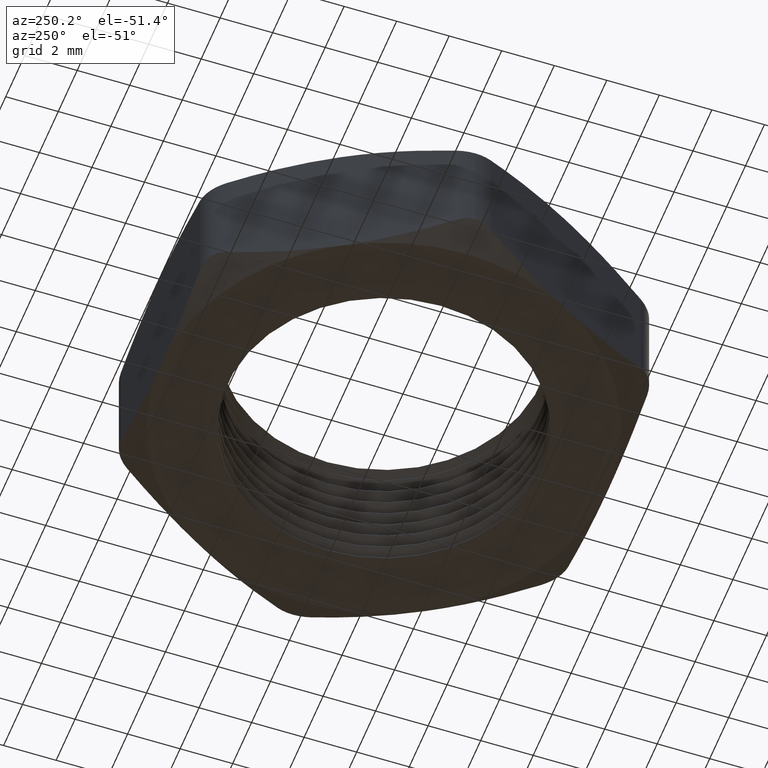
[diagram: clean part render]
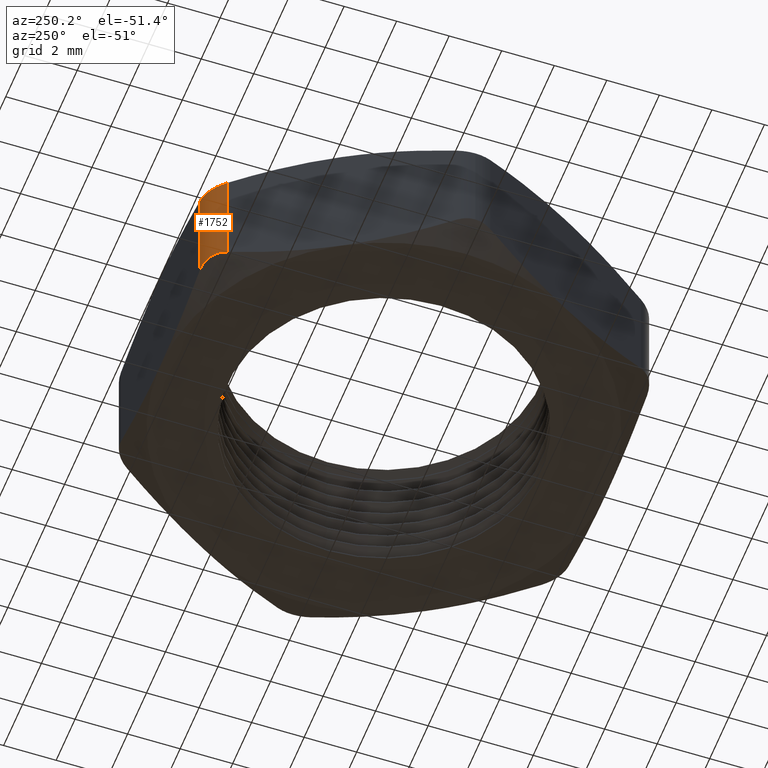
[diagram: same view with one face highlighted and labeled with its STEP entity id]
A machine part, auxiliary view. The second image highlights one B-rep face of the part: STEP entity #1752.
In plain terms, the highlighted cylindrical surface (edge-blend (fillet) strip) has radius 1.27 mm, axis along (0, 0, -1).
Its self-contained STEP definition (entity closure, byte-faithful):
#831 = DIRECTION ( 'NONE',  ( 0.0000000000000000000, 0.0000000000000000000, -1.000000000000000000 ) ) ;
#832 = VECTOR ( 'NONE', #831, 39.37007874015748100 ) ;
#833 = CARTESIAN_POINT ( 'NONE',  ( -0.2078460969082651900, 0.3100000000000001100, 0.2000000000000000100 ) ) ;
#839 = LINE ( 'NONE', #833, #832 ) ;
#840 = CARTESIAN_POINT ( 'NONE',  ( -0.2078460969082651900, 0.3100000000000000500, 0.1779283887266050200 ) ) ;
#841 = CARTESIAN_POINT ( 'NONE',  ( -0.2078460969082651900, 0.3100000000000001100, 0.02207161127339472500 ) ) ;
#858 = B_SPLINE_CURVE_WITH_KNOTS ( 'NONE', 3,
 ( #971, #970, #969, #968, #967, #966, #965, #964, #963, #962 ),
 .UNSPECIFIED., .F., .F.,
 ( 4, 2, 2, 2, 4 ),
 ( 2.676201035178417700E-017, 0.0003342912468057641500, 0.0006685824936115015300, 0.001002873740417238900, 0.001337164987222976200 ),
 .UNSPECIFIED. ) ;
#869 = DIRECTION ( 'NONE',  ( -1.000000000000000000, 0.0000000000000000000, 0.0000000000000000000 ) ) ;
#870 = DIRECTION ( 'NONE',  ( 0.0000000000000000000, 0.0000000000000000000, -1.000000000000000000 ) ) ;
#871 = CARTESIAN_POINT ( 'NONE',  ( -0.1645448267190432700, 0.2850000000000000900, 0.2000000000000000100 ) ) ;
#872 = AXIS2_PLACEMENT_3D ( 'NONE', #871, #870, #869 ) ;
#874 = CYLINDRICAL_SURFACE ( 'NONE', #872, 0.05000000000000001000 ) ;
#879 = FACE_OUTER_BOUND ( 'NONE', #1818, .T. ) ;
#962 = CARTESIAN_POINT ( 'NONE',  ( -0.2078460969082651900, 0.3100000000000000500, 0.1779283887266050200 ) ) ;
#963 = CARTESIAN_POINT ( 'NONE',  ( -0.2056908783416057400, 0.3137329480588705300, 0.1768312302508323100 ) ) ;
#964 = CARTESIAN_POINT ( 'NONE',  ( -0.2030170996219595700, 0.3172308252687909300, 0.1759777753152639800 ) ) ;
#965 = CARTESIAN_POINT ( 'NONE',  ( -0.1968696528518438000, 0.3233933261818773800, 0.1748389853025781900 ) ) ;
#966 = CARTESIAN_POINT ( 'NONE',  ( -0.1933152453860618700, 0.3261286567552277900, 0.1745429868577742800 ) ) ;
#967 = CARTESIAN_POINT ( 'NONE',  ( -0.1857016850149428300, 0.3305158295959999500, 0.1745466842428883300 ) ) ;
#968 = CARTESIAN_POINT ( 'NONE',  ( -0.1815930598946933200, 0.3322073780253216300, 0.1748415296647579700 ) ) ;
#969 = CARTESIAN_POINT ( 'NONE',  ( -0.1731269122359829500, 0.3344522658997229900, 0.1759933421467805300 ) ) ;
#970 = CARTESIAN_POINT ( 'NONE',  ( -0.1688540341875768300, 0.3349999999999999600, 0.1768315432439407100 ) ) ;
#971 = CARTESIAN_POINT ( 'NONE',  ( -0.1645448267190453600, 0.3350000000000001300, 0.1779283887266045200 ) ) ;
#1165 = CARTESIAN_POINT ( 'NONE',  ( -0.1645448267190453600, 0.3350000000000001300, 0.1779283887266045200 ) ) ;
#1166 = DIRECTION ( 'NONE',  ( 0.0000000000000000000, 0.0000000000000000000, 1.000000000000000000 ) ) ;
#1167 = VECTOR ( 'NONE', #1166, 39.37007874015748100 ) ;
#1168 = CARTESIAN_POINT ( 'NONE',  ( -0.1645448267190432700, 0.3350000000000001300, 0.2000000000000000100 ) ) ;
#1169 = LINE ( 'NONE', #1168, #1167 ) ;
#1177 = CARTESIAN_POINT ( 'NONE',  ( -0.1645448267190454400, 0.3350000000000001300, 0.02207161127339554700 ) ) ;
#1289 = CARTESIAN_POINT ( 'NONE',  ( -0.1969034987472038400, 0.3233678920324129000, 0.02515847033524180500 ) ) ;
#1290 = CARTESIAN_POINT ( 'NONE',  ( -0.2030807025044378500, 0.3171584370249799800, 0.02400665785321910700 ) ) ;
#1294 = CARTESIAN_POINT ( 'NONE',  ( -0.1688552638523636900, 0.3350000000000002400, 0.02316876974916797600 ) ) ;
#1295 = CARTESIAN_POINT ( 'NONE',  ( -0.1645448267190454400, 0.3350000000000001300, 0.02207161127339554700 ) ) ;
#1296 = CARTESIAN_POINT ( 'NONE',  ( -0.1933842622755549700, 0.3260802915465152400, 0.02545331575711158600 ) ) ;
#1297 = CARTESIAN_POINT ( 'NONE',  ( -0.1732214037352976800, 0.3344333783096484800, 0.02402222468473647800 ) ) ;
#1298 = CARTESIAN_POINT ( 'NONE',  ( -0.1857780789590938200, 0.3304802418207650700, 0.02545701314222586700 ) ) ;
#1299 = CARTESIAN_POINT ( 'NONE',  ( -0.1816320094619330300, 0.3321907836948583300, 0.02516101469742202200 ) ) ;
#1301 = CARTESIAN_POINT ( 'NONE',  ( -0.2056914931739984600, 0.3137318831379276000, 0.02316845675605333800 ) ) ;
#1302 = CARTESIAN_POINT ( 'NONE',  ( -0.2078460969082651900, 0.3100000000000001100, 0.02207161127339472500 ) ) ;
#1319 = B_SPLINE_CURVE_WITH_KNOTS ( 'NONE', 3,
 ( #1302, #1301, #1290, #1289, #1296, #1298, #1299, #1297, #1294, #1295 ),
 .UNSPECIFIED., .F., .F.,
 ( 4, 2, 2, 2, 4 ),
 ( 1.951563910473908000E-018, 0.0003342912468057319500, 0.0006685824936114619600, 0.001002873740417192000, 0.001337164987222922000 ),
 .UNSPECIFIED. ) ;
#1677 = VERTEX_POINT ( 'NONE', #841 ) ;
#1679 = VERTEX_POINT ( 'NONE', #840 ) ;
#1683 = EDGE_CURVE ( 'NONE', #1679, #1677, #839, .T. ) ;
#1711 = ORIENTED_EDGE ( 'NONE', *, *, #1929, .F. ) ;
#1752 = ADVANCED_FACE ( 'NONE', ( #879 ), #874, .T. ) ;
#1753 = ORIENTED_EDGE ( 'NONE', *, *, #1844, .F. ) ;
#1766 = EDGE_CURVE ( 'NONE', #1930, #1679, #858, .T. ) ;
#1818 = EDGE_LOOP ( 'NONE', ( #1974, #1711, #1753, #1826 ) ) ;
#1826 = ORIENTED_EDGE ( 'NONE', *, *, #1683, .F. ) ;
#1844 = EDGE_CURVE ( 'NONE', #1677, #1926, #1319, .T. ) ;
#1926 = VERTEX_POINT ( 'NONE', #1177 ) ;
#1929 = EDGE_CURVE ( 'NONE', #1926, #1930, #1169, .T. ) ;
#1930 = VERTEX_POINT ( 'NONE', #1165 ) ;
#1974 = ORIENTED_EDGE ( 'NONE', *, *, #1766, .F. ) ;